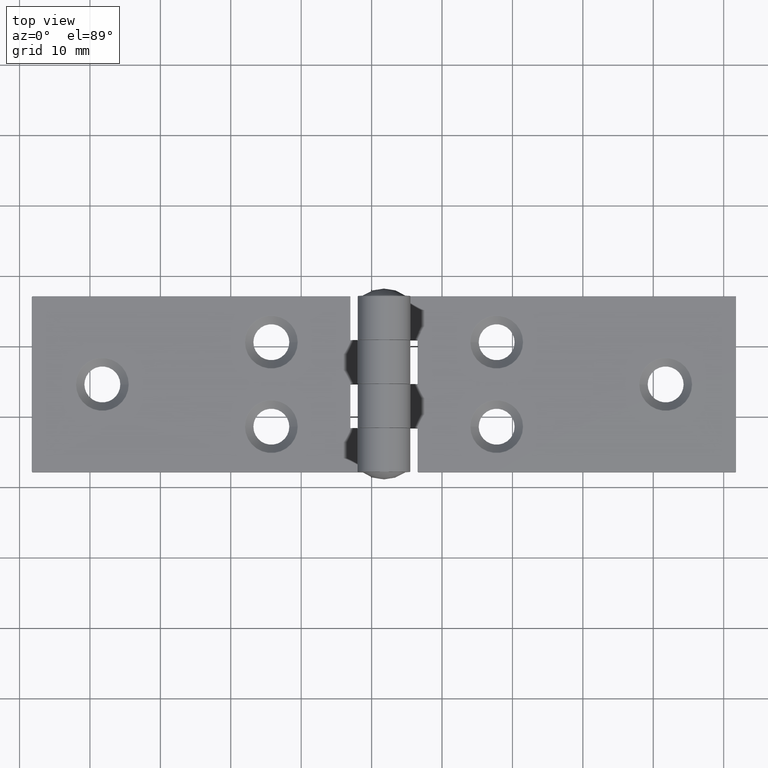
[diagram: clean part render]
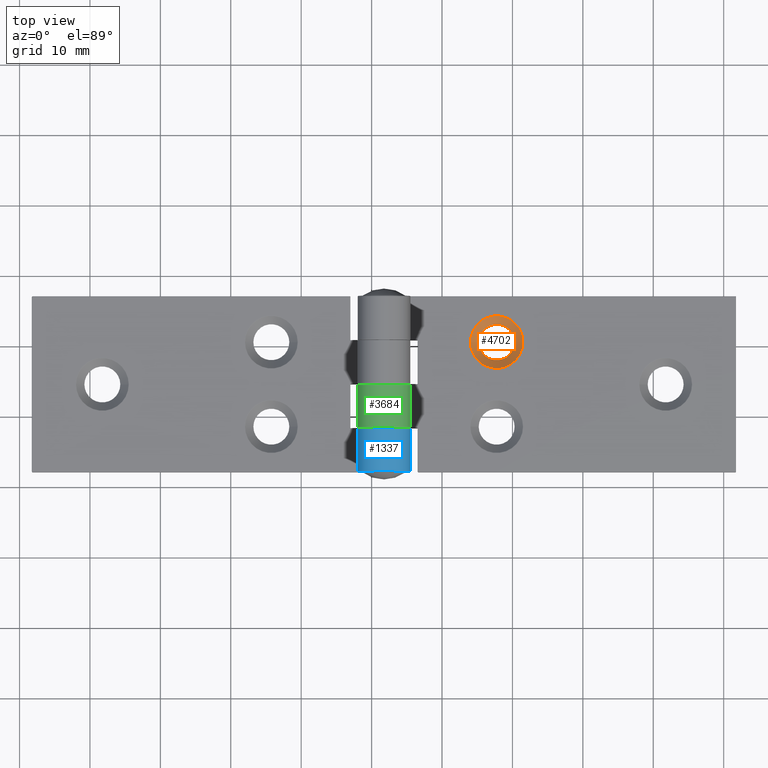
[diagram: same view with three faces highlighted in distinct colors, each labeled with its STEP entity id]
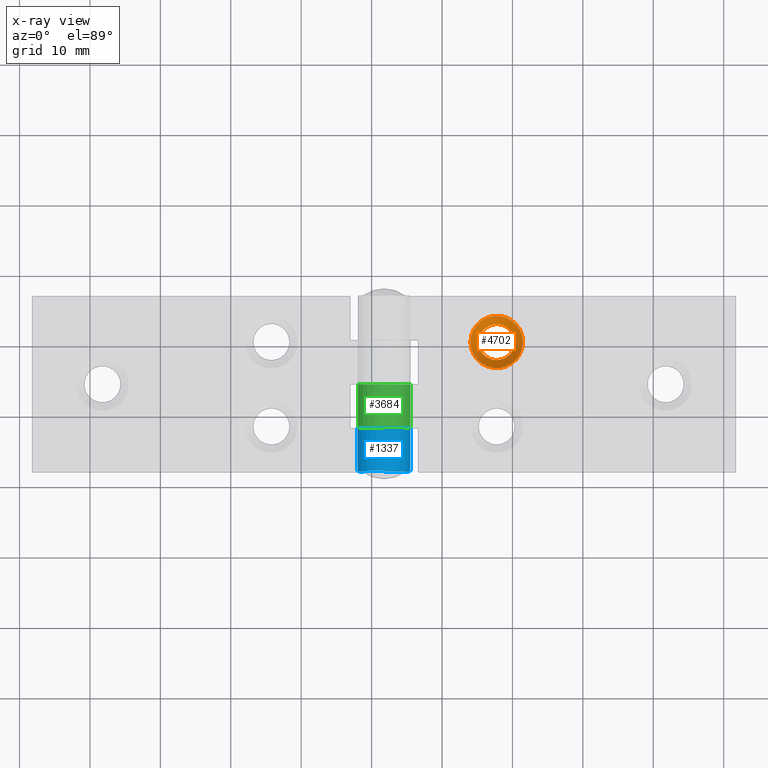
[diagram: x-ray of the same camera — body ghosted, the three highlighted faces saturated]
A machine part, top view with three faces highlighted in distinct colors.
The next image is the same camera in x-ray (body ghosted, the three faces saturated) — at least one of them is partly hidden behind the body in this view.
Their STEP definitions:

[orange] entity #4702 — the highlighted conical surface has half-angle 45 deg.
#64 = FACE_BOUND ( 'NONE', #4396, .T. ) ;
#67 = CIRCLE ( 'NONE', #3633, 3.720710678118667403 ) ;
#656 = CARTESIAN_POINT ( 'NONE',  ( 34.00000000000000000, -6.000000000000000888, -6.288372600415925717E-15 ) ) ;
#795 = CARTESIAN_POINT ( 'NONE',  ( 34.00000000000000000, -6.000000000000000888, 0.000000000000000000 ) ) ;
#1190 = EDGE_LOOP ( 'NONE', ( #3683 ) ) ;
#1298 = EDGE_CURVE ( 'NONE', #2066, #2066, #67, .T. ) ;
#1497 = CONICAL_SURFACE ( 'NONE', #4013, 2.549999999999996714, 0.7853981633974520538 ) ;
#1948 = CARTESIAN_POINT ( 'NONE',  ( 37.72071067811867096, -6.000000000000000888, 1.170710678118654702 ) ) ;
#2066 = VERTEX_POINT ( 'NONE', #1948 ) ;
#2595 = EDGE_CURVE ( 'NONE', #4079, #4079, #4426, .T. ) ;
#2640 = DIRECTION ( 'NONE',  ( 1.000000000000000000, 0.000000000000000000, 0.000000000000000000 ) ) ;
#2675 = DIRECTION ( 'NONE',  ( 0.000000000000000000, 0.000000000000000000, 1.000000000000000000 ) ) ;
#2746 = DIRECTION ( 'NONE',  ( 0.000000000000000000, 0.000000000000000000, 1.000000000000000000 ) ) ;
#2901 = DIRECTION ( 'NONE',  ( 0.000000000000000000, 0.000000000000000000, 1.000000000000000000 ) ) ;
#3016 = CARTESIAN_POINT ( 'NONE',  ( 36.54999999999999716, -6.000000000000000888, 0.000000000000000000 ) ) ;
#3357 = FACE_OUTER_BOUND ( 'NONE', #1190, .T. ) ;
#3435 = AXIS2_PLACEMENT_3D ( 'NONE', #795, #2675, #2640 ) ;
#3579 = ORIENTED_EDGE ( 'NONE', *, *, #2595, .F. ) ;
#3633 = AXIS2_PLACEMENT_3D ( 'NONE', #3931, #2746, #4262 ) ;
#3683 = ORIENTED_EDGE ( 'NONE', *, *, #1298, .T. ) ;
#3931 = CARTESIAN_POINT ( 'NONE',  ( 34.00000000000000000, -6.000000000000000888, 1.170710678118654702 ) ) ;
#4013 = AXIS2_PLACEMENT_3D ( 'NONE', #656, #2901, #4421 ) ;
#4079 = VERTEX_POINT ( 'NONE', #3016 ) ;
#4262 = DIRECTION ( 'NONE',  ( 1.000000000000000000, 0.000000000000000000, 0.000000000000000000 ) ) ;
#4396 = EDGE_LOOP ( 'NONE', ( #3579 ) ) ;
#4421 = DIRECTION ( 'NONE',  ( 1.000000000000000000, 0.000000000000000000, 0.000000000000000000 ) ) ;
#4426 = CIRCLE ( 'NONE', #3435, 2.549999999999996714 ) ;
#4702 = ADVANCED_FACE ( 'NONE', ( #3357, #64 ), #1497, .F. ) ;

[blue] entity #1337 — the highlighted cylindrical surface (edge-blend (fillet) strip) has radius 3.75 mm, axis along (-0, -1, -0).
#25 = CARTESIAN_POINT ( 'NONE',  ( 50.00000000000000000, -12.40000000000000213, 3.750000000000000000 ) ) ;
#134 = CARTESIAN_POINT ( 'NONE',  ( 50.00000000000000000, 12.50000000000000000, 3.750000000000000000 ) ) ;
#294 = VERTEX_POINT ( 'NONE', #859 ) ;
#322 = CARTESIAN_POINT ( 'NONE',  ( 50.00000000000000000, 12.50000000000000000, 0.000000000000000000 ) ) ;
#410 = ORIENTED_EDGE ( 'NONE', *, *, #2653, .T. ) ;
#727 = CARTESIAN_POINT ( 'NONE',  ( 47.09492849496405142, -6.350000000000001421, 1.378700872806610134 ) ) ;
#801 = EDGE_LOOP ( 'NONE', ( #2856, #1031, #2384, #410 ) ) ;
#859 = CARTESIAN_POINT ( 'NONE',  ( 47.09492849496405142, -12.40000000000000213, 1.378700872806609468 ) ) ;
#1021 = CARTESIAN_POINT ( 'NONE',  ( 50.00000000000000000, -6.350000000000001421, 3.750000000000000000 ) ) ;
#1031 = ORIENTED_EDGE ( 'NONE', *, *, #2405, .T. ) ;
#1055 = LINE ( 'NONE', #1116, #3628 ) ;
#1067 = VECTOR ( 'NONE', #3393, 1000.000000000000000 ) ;
#1110 = CARTESIAN_POINT ( 'NONE',  ( 50.00000000000000000, -6.350000000000001421, 0.000000000000000000 ) ) ;
#1116 = CARTESIAN_POINT ( 'NONE',  ( 47.09492849496405142, 12.50000000000000000, 1.378700872806609690 ) ) ;
#1337 = ADVANCED_FACE ( 'NONE', ( #2656 ), #1442, .T. ) ;
#1442 = CYLINDRICAL_SURFACE ( 'NONE', #3993, 3.749999999999999112 ) ;
#1567 = DIRECTION ( 'NONE',  ( 0.000000000000000000, 0.000000000000000000, -1.000000000000000000 ) ) ;
#2035 = DIRECTION ( 'NONE',  ( -0.000000000000000000, -1.000000000000000000, -0.000000000000000000 ) ) ;
#2228 = CIRCLE ( 'NONE', #4806, 3.749999999999999112 ) ;
#2272 = VERTEX_POINT ( 'NONE', #727 ) ;
#2384 = ORIENTED_EDGE ( 'NONE', *, *, #4033, .T. ) ;
#2405 = EDGE_CURVE ( 'NONE', #3205, #2272, #4664, .T. ) ;
#2557 = DIRECTION ( 'NONE',  ( 0.000000000000000000, 0.000000000000000000, -1.000000000000000000 ) ) ;
#2653 = EDGE_CURVE ( 'NONE', #294, #2881, #2228, .T. ) ;
#2656 = FACE_OUTER_BOUND ( 'NONE', #801, .T. ) ;
#2762 = DIRECTION ( 'NONE',  ( 0.000000000000000000, 0.000000000000000000, -1.000000000000000000 ) ) ;
#2816 = CARTESIAN_POINT ( 'NONE',  ( 50.00000000000000000, -12.40000000000000213, 0.000000000000000000 ) ) ;
#2856 = ORIENTED_EDGE ( 'NONE', *, *, #3198, .F. ) ;
#2881 = VERTEX_POINT ( 'NONE', #2816 ) ;
#3198 = EDGE_CURVE ( 'NONE', #3205, #2881, #3810, .T. ) ;
#3205 = VERTEX_POINT ( 'NONE', #1110 ) ;
#3393 = DIRECTION ( 'NONE',  ( -0.000000000000000000, -1.000000000000000000, -0.000000000000000000 ) ) ;
#3628 = VECTOR ( 'NONE', #3725, 1000.000000000000000 ) ;
#3725 = DIRECTION ( 'NONE',  ( -0.000000000000000000, -1.000000000000000000, -0.000000000000000000 ) ) ;
#3760 = AXIS2_PLACEMENT_3D ( 'NONE', #1021, #4890, #2557 ) ;
#3810 = LINE ( 'NONE', #322, #1067 ) ;
#3993 = AXIS2_PLACEMENT_3D ( 'NONE', #134, #2035, #2762 ) ;
#4033 = EDGE_CURVE ( 'NONE', #2272, #294, #1055, .T. ) ;
#4219 = DIRECTION ( 'NONE',  ( 0.000000000000000000, 1.000000000000000000, -0.000000000000000000 ) ) ;
#4664 = CIRCLE ( 'NONE', #3760, 3.749999999999999112 ) ;
#4806 = AXIS2_PLACEMENT_3D ( 'NONE', #25, #4219, #1567 ) ;
#4890 = DIRECTION ( 'NONE',  ( 0.000000000000000000, -1.000000000000000000, 0.000000000000000000 ) ) ;

[green] entity #3684 — the highlighted cylindrical surface (edge-blend (fillet) strip) has radius 3.75 mm, axis along (0, 1, 0).
#12 = CIRCLE ( 'NONE', #1161, 3.749999999999999112 ) ;
#68 = ORIENTED_EDGE ( 'NONE', *, *, #1296, .T. ) ;
#156 = CARTESIAN_POINT ( 'NONE',  ( 47.09492849496405142, 0.09999999999999936717, 1.378700872806610134 ) ) ;
#285 = EDGE_CURVE ( 'NONE', #2765, #1737, #1509, .T. ) ;
#478 = VERTEX_POINT ( 'NONE', #4132 ) ;
#485 = EDGE_CURVE ( 'NONE', #4635, #1737, #12, .T. ) ;
#536 = LINE ( 'NONE', #826, #1840 ) ;
#549 = ORIENTED_EDGE ( 'NONE', *, *, #485, .T. ) ;
#826 = CARTESIAN_POINT ( 'NONE',  ( 47.09492849496405142, 12.50000000000000000, 1.378700872806609690 ) ) ;
#879 = CYLINDRICAL_SURFACE ( 'NONE', #4336, 3.749999999999999112 ) ;
#983 = EDGE_LOOP ( 'NONE', ( #68, #549, #2585, #2820 ) ) ;
#1113 = DIRECTION ( 'NONE',  ( -0.000000000000000000, -1.000000000000000000, -0.000000000000000000 ) ) ;
#1161 = AXIS2_PLACEMENT_3D ( 'NONE', #2188, #1484, #3670 ) ;
#1217 = DIRECTION ( 'NONE',  ( 0.000000000000000000, 0.000000000000000000, -1.000000000000000000 ) ) ;
#1296 = EDGE_CURVE ( 'NONE', #478, #4635, #536, .T. ) ;
#1444 = CARTESIAN_POINT ( 'NONE',  ( 50.00000000000000000, 6.150000000000000355, 3.750000000000000000 ) ) ;
#1484 = DIRECTION ( 'NONE',  ( 0.000000000000000000, 1.000000000000000000, 0.000000000000000000 ) ) ;
#1493 = DIRECTION ( 'NONE',  ( 0.000000000000000000, 0.000000000000000000, 1.000000000000000000 ) ) ;
#1509 = LINE ( 'NONE', #3876, #1905 ) ;
#1737 = VERTEX_POINT ( 'NONE', #2618 ) ;
#1840 = VECTOR ( 'NONE', #1951, 1000.000000000000000 ) ;
#1905 = VECTOR ( 'NONE', #2702, 1000.000000000000000 ) ;
#1951 = DIRECTION ( 'NONE',  ( -0.000000000000000000, -1.000000000000000000, -0.000000000000000000 ) ) ;
#2047 = FACE_OUTER_BOUND ( 'NONE', #983, .T. ) ;
#2188 = CARTESIAN_POINT ( 'NONE',  ( 50.00000000000000000, 0.09999999999999939493, 3.750000000000000000 ) ) ;
#2320 = DIRECTION ( 'NONE',  ( -0.000000000000000000, -1.000000000000000000, -0.000000000000000000 ) ) ;
#2585 = ORIENTED_EDGE ( 'NONE', *, *, #285, .F. ) ;
#2618 = CARTESIAN_POINT ( 'NONE',  ( 50.00000000000000000, 0.09999999999999939493, 0.000000000000000000 ) ) ;
#2702 = DIRECTION ( 'NONE',  ( -0.000000000000000000, -1.000000000000000000, -0.000000000000000000 ) ) ;
#2707 = CIRCLE ( 'NONE', #4561, 3.749999999999999112 ) ;
#2764 = CARTESIAN_POINT ( 'NONE',  ( 50.00000000000000000, 6.150000000000000355, 0.000000000000000000 ) ) ;
#2765 = VERTEX_POINT ( 'NONE', #2764 ) ;
#2820 = ORIENTED_EDGE ( 'NONE', *, *, #4798, .T. ) ;
#3670 = DIRECTION ( 'NONE',  ( 0.000000000000000000, 0.000000000000000000, 1.000000000000000000 ) ) ;
#3684 = ADVANCED_FACE ( 'NONE', ( #2047 ), #879, .T. ) ;
#3876 = CARTESIAN_POINT ( 'NONE',  ( 50.00000000000000000, 12.50000000000000000, 0.000000000000000000 ) ) ;
#4132 = CARTESIAN_POINT ( 'NONE',  ( 47.09492849496405142, 6.150000000000000355, 1.378700872806610134 ) ) ;
#4209 = CARTESIAN_POINT ( 'NONE',  ( 50.00000000000000000, 12.50000000000000000, 3.750000000000000000 ) ) ;
#4336 = AXIS2_PLACEMENT_3D ( 'NONE', #4209, #2320, #1217 ) ;
#4561 = AXIS2_PLACEMENT_3D ( 'NONE', #1444, #1113, #1493 ) ;
#4635 = VERTEX_POINT ( 'NONE', #156 ) ;
#4798 = EDGE_CURVE ( 'NONE', #2765, #478, #2707, .T. ) ;